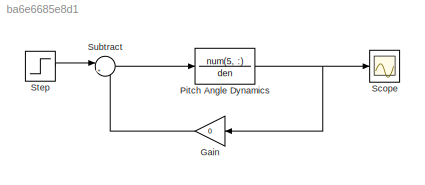
MODEL slx_ba6e6685e8d1
KIND model
CONFIG AbsTol = auto
CONFIG EnableMultiTasking = off
CONFIG FixedStep = auto
CONFIG MaxStep = auto
CONFIG MinStep = auto
CONFIG RelTol = 1e-3
CONFIG SampleTimeConstraint = Unconstrained
CONFIG Solver = VariableStepAuto
CONFIG SolverName = VariableStepAuto
CONFIG StartTime = 0.0
CONFIG StopTime = 400
BLOCK [Gain] Gain
  Gain = 0
BLOCK [TransferFcn] Pitch Angle Dynamics
  ContinuousStateAttributes = 'pitch_angle'
  Denominator = den
  Numerator = num(5, :)
BLOCK [Scope] Scope
  Floating = off
  NumInputPorts = 1
  Ports = [1]
  ScopeSpecificationString = Simulink.scopes.TimeScopeBlockCfg('CurrentConfiguration', extmgr.ConfigurationSet(extmgr.Configuration('Core','General UI',true),extmgr.Configuration('Core','Source UI',true),extmgr.Configuration('Sources','WiredSimulink',true),extmgr.Configuration('Visuals','Time Domain',true,'SerializedDisplays',{struct('MinYLimReal','-0.0232','MaxYLimReal','0.00258','YLabelReal','','MinYLimMag','0.00000','MaxYL...<+1366ch>
BLOCK [Step] Step
  After = deg2rad(1)
  SampleTime = 0
  Time = 0
BLOCK [Sum] Subtract
  Inputs = |+-
  Ports = [2, 1]
LINE Gain:1 -> Subtract:2
NET Pitch Angle Dynamics:1 -> Gain:1, Scope:1
LINE Step:1 -> Subtract:1
LINE Subtract:1 -> Pitch Angle Dynamics:1
note: NET lines group one-source signal fan-out (src -> all destinations, sorted); 1:1 wires keep LINE
